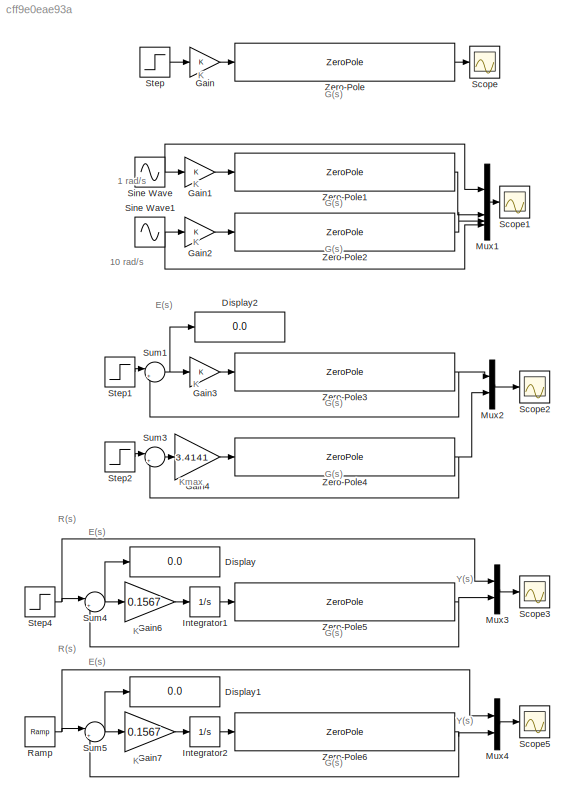
MODEL slx_cff9e0eae93a
KIND model
CONFIG AbsTol = auto
CONFIG EnableMultiTasking = off
CONFIG FixedStep = auto
CONFIG MaxStep = auto
CONFIG MinStep = auto
CONFIG RelTol = 1e-3
CONFIG SampleTimeConstraint = Unconstrained
CONFIG SolverName = VariableStepAuto
CONFIG StartTime = 0.0
CONFIG StopTime = 30
BLOCK [Display] Display
  Decimation = 1
BLOCK [Display] Display1
  Decimation = 1
BLOCK [Display] Display2
  Decimation = 1
BLOCK [Gain] Gain
BLOCK [Gain] Gain1
BLOCK [Gain] Gain2
BLOCK [Gain] Gain3
BLOCK [Gain] Gain4
  Gain = 3.4141
BLOCK [Gain] Gain6
  Gain = 0.1567
BLOCK [Gain] Gain7
  Gain = 0.1567
BLOCK [Integrator] Integrator1
BLOCK [Integrator] Integrator2
BLOCK [Mux] Mux1
  DisplayOption = bar
BLOCK [Mux] Mux2
  DisplayOption = bar
  Inputs = 2
BLOCK [Mux] Mux3
  DisplayOption = bar
  Inputs = 2
BLOCK [Mux] Mux4
  DisplayOption = bar
  Inputs = 2
BLOCK [Reference] Ramp  REF=simulink/Sources/Ramp
  SourceBlock = simulink/Sources/Ramp
  SourceType = Ramp
BLOCK [Scope] Scope
  Floating = off
  NumInputPorts = 1
  ScopeSpecificationString = Simulink.scopes.TimeScopeBlockCfg('CurrentConfiguration', extmgr.ConfigurationSet(extmgr.Configuration('Core','General UI',true,'FigureColor',[1 1 1]),extmgr.Configuration('Core','Source UI',true),extmgr.Configuration('Sources','WiredSimulink',true),extmgr.Configuration('Visuals','Time Domain',true,'SerializedDisplays',{struct('MinYLimReal','-1.19968','MaxYLimReal','10.79713','YLabelReal','','MinY...<+1704ch>
BLOCK [Scope] Scope1
  Floating = off
  NumInputPorts = 1
  ScopeSpecificationString = Simulink.scopes.TimeScopeBlockCfg('CurrentConfiguration', extmgr.ConfigurationSet(extmgr.Configuration('Core','General UI',true,'FigureColor',[1 1 1]),extmgr.Configuration('Core','Source UI',true),extmgr.Configuration('Sources','WiredSimulink',true,'DataLoggingVariableName','ScopeData1'),extmgr.Configuration('Visuals','Time Domain',true,'SerializedDisplays',{struct('MinYLimReal','-7.62074','MaxYLi...<+2022ch>
BLOCK [Scope] Scope2
  Floating = off
  NumInputPorts = 1
  ScopeSpecificationString = Simulink.scopes.TimeScopeBlockCfg('CurrentConfiguration', extmgr.ConfigurationSet(extmgr.Configuration('Core','General UI',true,'FigureColor',[1 1 1]),extmgr.Configuration('Core','Source UI',true),extmgr.Configuration('Sources','WiredSimulink',true,'DataLoggingVariableName','ScopeData1'),extmgr.Configuration('Visuals','Time Domain',true,'SerializedDisplays',{struct('MinYLimReal','-2.00247','MaxYLi...<+1820ch>
BLOCK [Scope] Scope3
  Floating = off
  NumInputPorts = 1
  ScopeSpecificationString = Simulink.scopes.TimeScopeBlockCfg('CurrentConfiguration', extmgr.ConfigurationSet(extmgr.Configuration('Core','General UI',true,'FigureColor',[1 1 1]),extmgr.Configuration('Core','Source UI',true),extmgr.Configuration('Sources','WiredSimulink',true,'DataLoggingVariableName','ScopeData2'),extmgr.Configuration('Visuals','Time Domain',true,'SerializedDisplays',{struct('MinYLimReal','-0.20445','MaxYLi...<+1835ch>
BLOCK [Scope] Scope5
  Floating = off
  NumInputPorts = 1
  ScopeSpecificationString = Simulink.scopes.TimeScopeBlockCfg('CurrentConfiguration', extmgr.ConfigurationSet(extmgr.Configuration('Core','General UI',true,'FigureColor',[1 1 1]),extmgr.Configuration('Core','Source UI',true),extmgr.Configuration('Sources','WiredSimulink',true,'DataLoggingVariableName','ScopeData3'),extmgr.Configuration('Visuals','Time Domain',true,'SerializedDisplays',{struct('MinYLimReal','-1.25','MaxYLimRe...<+1825ch>
BLOCK [Sin] Sine Wave
  SampleTime = 0
BLOCK [Sin] Sine Wave1
  Frequency = 10
  SampleTime = 0
BLOCK [Step] Step
  SampleTime = 0
BLOCK [Step] Step1
  SampleTime = 0
BLOCK [Step] Step2
  SampleTime = 0
BLOCK [Step] Step4
  SampleTime = 0
BLOCK [Sum] Sum1
  Inputs = |+-
BLOCK [Sum] Sum3
  Inputs = |+-
BLOCK [Sum] Sum4
  Inputs = |+-
BLOCK [Sum] Sum5
  Inputs = |+-
BLOCK [ZeroPole] Zero-Pole
  Gain = [124.8]
  Poles = [-26 -22 -2 -1]
  Zeros = [-88]
BLOCK [ZeroPole] Zero-Pole1
  Gain = [124.8]
  Poles = [-26 -22 -2 -1]
  Zeros = [-88]
BLOCK [ZeroPole] Zero-Pole2
  Gain = [124.8]
  Poles = [-26 -22 -2 -1]
  Zeros = [-88]
BLOCK [ZeroPole] Zero-Pole3
  Gain = [124.8]
  Poles = [-26 -22 -2 -1]
  Zeros = [-88]
BLOCK [ZeroPole] Zero-Pole4
  Gain = [124.8]
  Poles = [-26 -22 -2 -1]
  Zeros = [-88]
BLOCK [ZeroPole] Zero-Pole5
  Gain = [124.8]
  Poles = [-26 -22 -2 -1]
  Zeros = [-88]
BLOCK [ZeroPole] Zero-Pole6
  Gain = [124.8]
  Poles = [-26 -22 -2 -1]
  Zeros = [-88]
ANNOTATION (root): 1 rad/s
ANNOTATION (root): 10 rad/s
ANNOTATION (root): E(s)
ANNOTATION (root): G(s)
ANNOTATION (root): K
ANNOTATION (root): Kmax
ANNOTATION (root): R(s)
ANNOTATION (root): Y(s)
LINE Gain1:1 -> Zero-Pole1:1
LINE Gain2:1 -> Zero-Pole2:1
LINE Gain3:1 -> Zero-Pole3:1
LINE Gain4:1 -> Zero-Pole4:1
LINE Gain6:1 -> Integrator1:1
LINE Gain7:1 -> Integrator2:1
LINE Gain:1 -> Zero-Pole:1
LINE Integrator1:1 -> Zero-Pole5:1
LINE Integrator2:1 -> Zero-Pole6:1
LINE Mux1:1 -> Scope1:1
LINE Mux2:1 -> Scope2:1
LINE Mux3:1 -> Scope3:1
LINE Mux4:1 -> Scope5:1
NET Ramp:1 -> Mux4:1, Sum5:1
NET Sine Wave1:1 -> Gain2:1, Mux1:4
NET Sine Wave:1 -> Gain1:1, Mux1:1
LINE Step1:1 -> Sum1:1
LINE Step2:1 -> Sum3:1
NET Step4:1 -> Mux3:1, Sum4:1
LINE Step:1 -> Gain:1
NET Sum1:1 -> Display2:1, Gain3:1
LINE Sum3:1 -> Gain4:1
NET Sum4:1 -> Display:1, Gain6:1
NET Sum5:1 -> Display1:1, Gain7:1
LINE Zero-Pole1:1 -> Mux1:2
LINE Zero-Pole2:1 -> Mux1:3
NET Zero-Pole3:1 -> Mux2:1, Sum1:2
NET Zero-Pole4:1 -> Mux2:2, Sum3:2
NET Zero-Pole5:1 -> Mux3:2, Sum4:2
NET Zero-Pole6:1 -> Mux4:2, Sum5:2
LINE Zero-Pole:1 -> Scope:1
note: NET lines group one-source signal fan-out (src -> all destinations, sorted); 1:1 wires keep LINE
